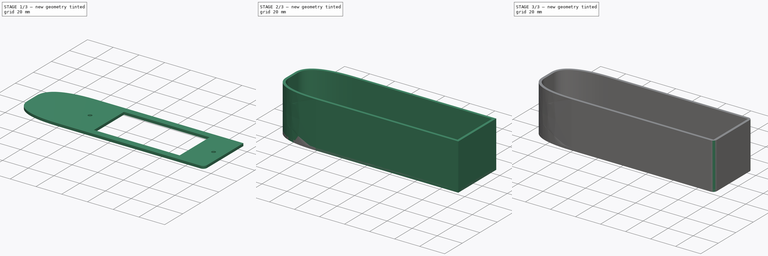
[diagram: build sequence overview — one tinted view per stage of 3, left to right]
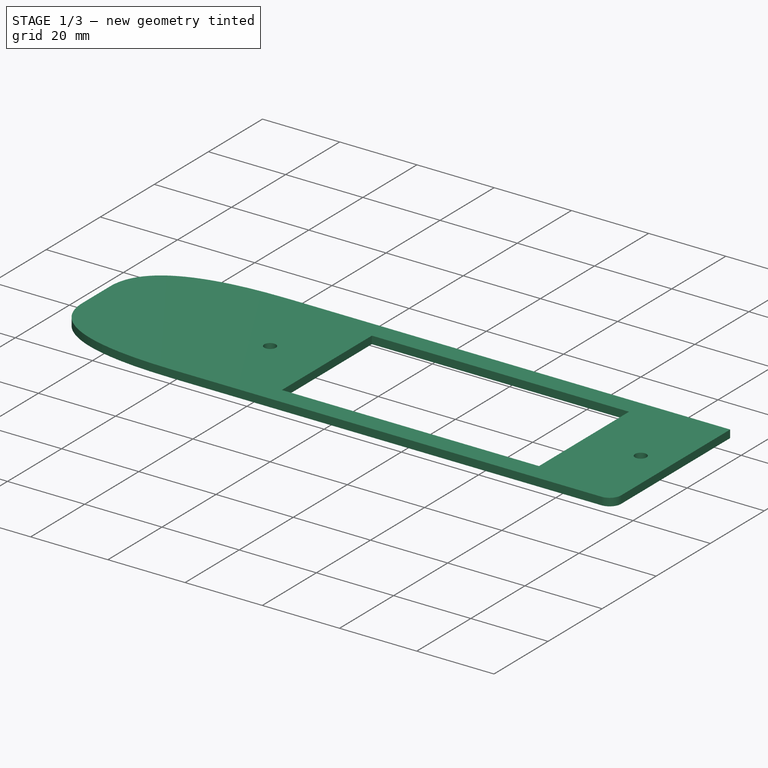
[diagram: stage 1 of 3 — iso view after this stage's code; geometry added in this stage tinted green]
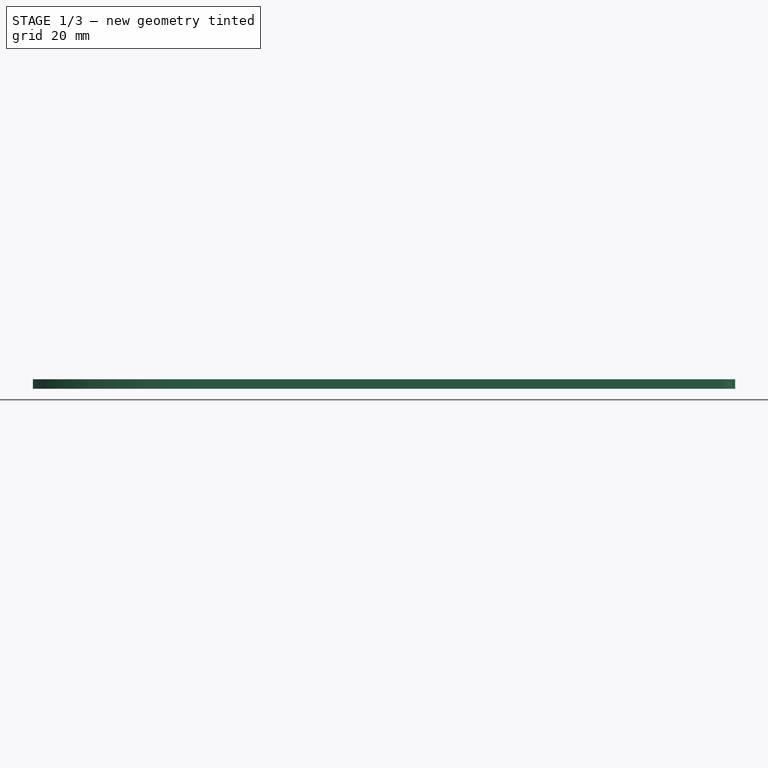
[diagram: stage 1 of 3 — front view after this stage's code; geometry added in this stage tinted green]
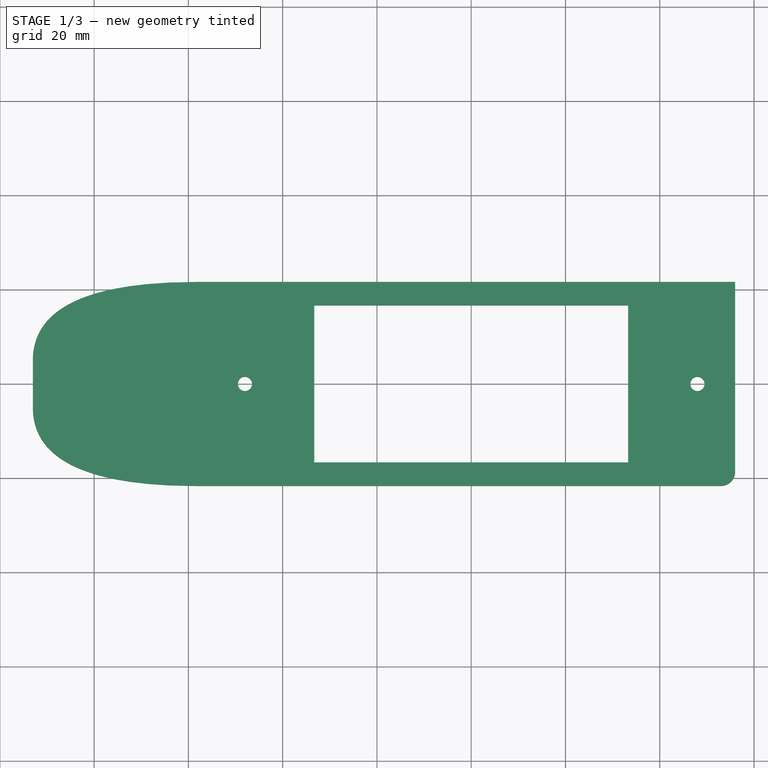
[diagram: stage 1 of 3 — top view after this stage's code; geometry added in this stage tinted green]
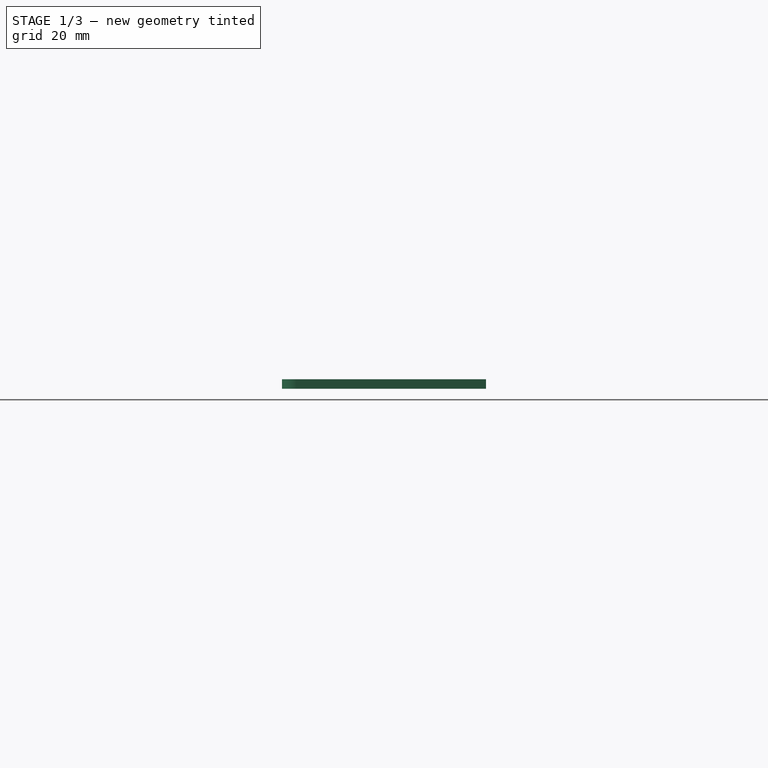
[diagram: stage 1 of 3 — right view after this stage's code; geometry added in this stage tinted green]
FCSTD DOCUMENT  (FreeCAD 0.20R25352 (Git))
Label: garage door switch
License: All rights reserved
LicenseURL: http://en.wikipedia.org/wiki/All_rights_reserved
objects: Sketcher::SketchObject×3, PartDesign::Fillet×3, PartDesign::Pad×2, PartDesign::Body×2, PartDesign::Thickness×1, PartDesign::Hole×1
note: 19 computed .brp shape members not serialized (recipe doc carries the construction recipe); baked Part::Feature solids carry a one-line shape summary decoded from their .brp

FEATURE [PartDesign::Pad] Pad001
  Direction = (0,0,1)
  Length = 2
  Length2 = 100
  Profile = -> Sketch
  Refine = true
  Type = 0
FEATURE [PartDesign::Body] Body
  Group = -> [Sketch001,Pad,Thickness,Sketch002,Hole,Fillet]
  Origin = -> Origin
  Tip = -> Fillet
FEATURE [PartDesign::Fillet] Fillet001
  Base = -> Pad001 [Edge5]
  BaseFeature = -> Pad001
  Radius = 3
  Refine = true
  SupportTransform = false
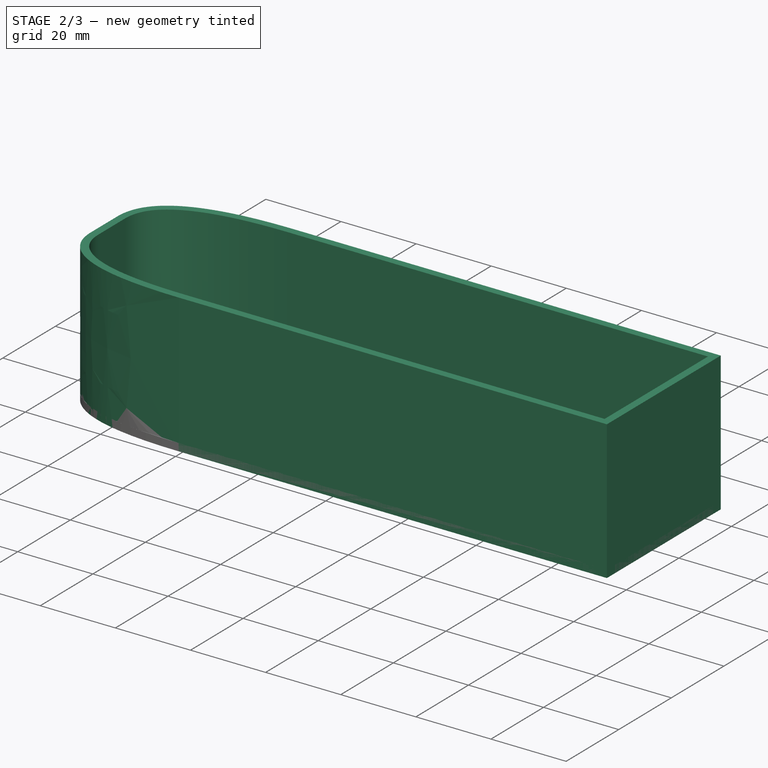
[diagram: stage 2 of 3 — iso view after this stage's code; geometry added in this stage tinted green]
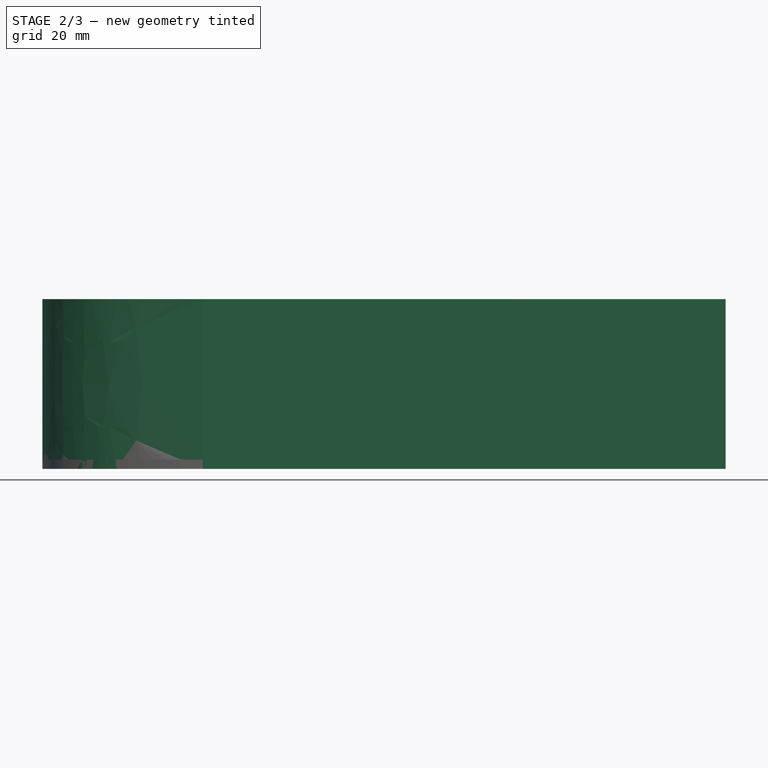
[diagram: stage 2 of 3 — front view after this stage's code; geometry added in this stage tinted green]
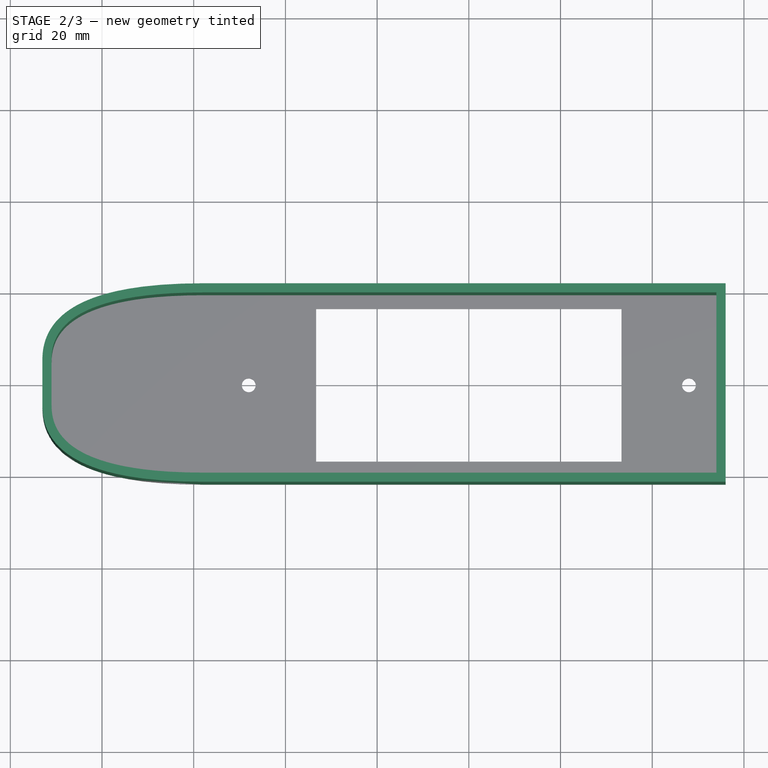
[diagram: stage 2 of 3 — top view after this stage's code; geometry added in this stage tinted green]
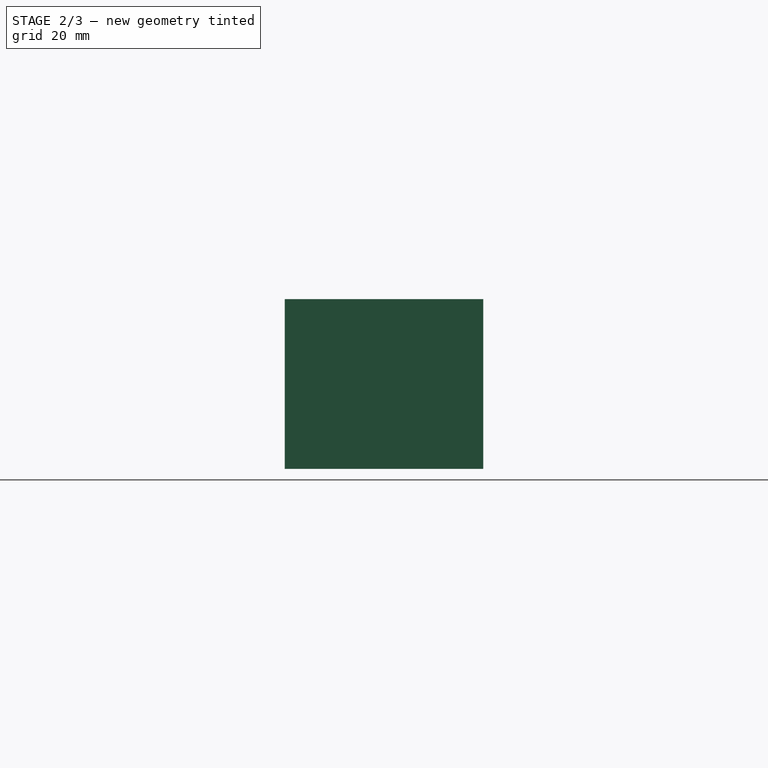
[diagram: stage 2 of 3 — right view after this stage's code; geometry added in this stage tinted green]
FEATURE [Sketcher::SketchObject] Sketch
  FullyConstrained = true
  MapMode = 5
  Support = -> [XY_Plane001]
  sketch-geometry (23):
    g0: LineSegment StartX=-33.3 StartY=16.65 StartZ=0 EndX=33.3 EndY=16.65 EndZ=0
    g1: LineSegment StartX=33.3 StartY=16.65 StartZ=0 EndX=33.3 EndY=-16.65 EndZ=0
    g2: LineSegment StartX=33.3 StartY=-16.65 StartZ=0 EndX=-33.3 EndY=-16.65 EndZ=0
    g3: LineSegment StartX=-33.3 StartY=-16.65 StartZ=0 EndX=-33.3 EndY=16.65 EndZ=0
    g4: LineSegment StartX=-58 StartY=21.65 StartZ=0 EndX=56 EndY=21.65 EndZ=0
    g5: LineSegment StartX=56 StartY=21.65 StartZ=0 EndX=56 EndY=-21.65 EndZ=0
    g6: LineSegment StartX=56 StartY=-21.65 StartZ=0 EndX=-58 EndY=-21.65 EndZ=0
    g7: LineSegment StartX=-93 StartY=-5 StartZ=0 EndX=-93 EndY=5 EndZ=0
    g8: Circle CenterX=-48 CenterY=0 CenterZ=0 NormalX=0 NormalY=0 NormalZ=1 AngleXU=0 Radius=1.5
    g9: Circle CenterX=48 CenterY=7.982e-12 CenterZ=0 NormalX=0 NormalY=0 NormalZ=1 AngleXU=0 Radius=1.5
    g10: LineSegment StartX=-48 StartY=0 StartZ=0 EndX=-93 EndY=0 EndZ=0
    g11: Circle CenterX=-58 CenterY=21.65 CenterZ=0 NormalX=0 NormalY=0 NormalZ=1 AngleXU=0 Radius=1
    g12: Circle CenterX=-93 CenterY=21.65 CenterZ=0 NormalX=0 NormalY=0 NormalZ=1 AngleXU=0 Radius=1
    g13: Circle CenterX=-93 CenterY=5 CenterZ=0 NormalX=0 NormalY=0 NormalZ=1 AngleXU=0 Radius=1
    g14: BSplineCurve PolesCount=3 KnotsCount=2 Degree=2 IsPeriodic=0
    g15: GeomPoint X=-58 Y=21.65 Z=0
    g16: GeomPoint X=-93 Y=5 Z=0
    g17: Circle CenterX=-58 CenterY=-21.65 CenterZ=0 NormalX=0 NormalY=0 NormalZ=1 AngleXU=0 Radius=1
    g18: Circle CenterX=-93 CenterY=-21.65 CenterZ=0 NormalX=0 NormalY=0 NormalZ=1 AngleXU=0 Radius=1
    g19: Circle CenterX=-93 CenterY=-5 CenterZ=0 NormalX=0 NormalY=0 NormalZ=1 AngleXU=0 Radius=1
    g20: BSplineCurve PolesCount=3 KnotsCount=2 Degree=2 IsPeriodic=0
    g21: GeomPoint X=-58 Y=-21.65 Z=0
    g22: GeomPoint X=-93 Y=-5 Z=0
  constraints (54):
    c: Coincident(g0,g1)
    c: Coincident(g1,g2)
    c: Coincident(g2,g3)
    c: Coincident(g3,g0)
    c: Horizontal(g0)
    c: Horizontal(g2)
    c: Vertical(g1)
    c: Vertical(g3)
    c: Coincident(g4,g5)
    c: Coincident(g5,g6)
    c: Horizontal(g4)
    c: Horizontal(g6)
    c: Vertical(g5)
    c: PointOnObject(g8,g-1)
    c: Symmetric(g0,g1,g-1)
    c: Symmetric(g8,g9,g-1)
    c: DistanceX(g8,g9) = 96
    c: DistanceX(g2,g2) = 66.6
    c: DistanceY(g1,g1) = 33.3
    c: DistanceY(g5,g1) = 5
    c: Diameter(g8) = 3
    c: Equal(g9,g8)
    c: DistanceX(g9,g4) = 8
    c: Symmetric(g4,g6,g-1)
    c: Coincident(g10,g8)
    c: Horizontal(g10)
    c: DistanceX(g10,g10) = 45
    c: PointOnObject(g10,g7)
    c: DistanceY(g7,g7) = 10
    c: DistanceX(g4,g8) = 10
    c: Symmetric(g7,g7,g-1)
    c: Coincident(g14,g4)
    c: Weight(g11) = 1
    c: Equal(g11,g12)
    c: Equal(g11,g13)
    c: Coincident(g14,g7)
    c: InternalAlignment(g11,g14)
    c: InternalAlignment(g12,g14)
    c: InternalAlignment(g13,g14)
    c: InternalAlignment(g15,g14)
    c: InternalAlignment(g16,g14)
    c: Coincident(g20,g6)
    c: Weight(g17) = 1
    c: Equal(g17,g18)
    c: Equal(g17,g19)
    c: Coincident(g20,g7)
    c: InternalAlignment(g17,g20)
    c: InternalAlignment(g18,g20)
    c: InternalAlignment(g19,g20)
    c: InternalAlignment(g21,g20)
    c: InternalAlignment(g22,g20)
    c: Symmetric(g18,g12,g10)
    c: Vertical(g12,g10)
    c: Horizontal(g12,g4)
FEATURE [Sketcher::SketchObject] Sketch001
  FullyConstrained = true
  MapMode = 5
  Support = -> [XY_Plane]
  sketch-geometry (17):
    g0: LineSegment StartX=-58 StartY=21.65 StartZ=0 EndX=56 EndY=21.65 EndZ=0
    g1: LineSegment StartX=56 StartY=21.65 StartZ=0 EndX=56 EndY=-21.65 EndZ=0
    g2: LineSegment StartX=56 StartY=-21.65 StartZ=0 EndX=-58 EndY=-21.65 EndZ=0
    g3: LineSegment StartX=-93 StartY=-5 StartZ=0 EndX=-93 EndY=5 EndZ=0
    g4: LineSegment StartX=-48 StartY=0 StartZ=0 EndX=-93 EndY=0 EndZ=0
    g5: Circle CenterX=-58 CenterY=21.65 CenterZ=0 NormalX=0 NormalY=0 NormalZ=1 AngleXU=0 Radius=1
    g6: Circle CenterX=-93 CenterY=21.65 CenterZ=0 NormalX=0 NormalY=0 NormalZ=1 AngleXU=0 Radius=1
    g7: Circle CenterX=-93 CenterY=5 CenterZ=0 NormalX=0 NormalY=0 NormalZ=1 AngleXU=0 Radius=1
    g8: BSplineCurve PolesCount=3 KnotsCount=2 Degree=2 IsPeriodic=0
    g9: GeomPoint X=-58 Y=21.65 Z=0
    g10: GeomPoint X=-93 Y=5 Z=0
    g11: Circle CenterX=-58 CenterY=-21.65 CenterZ=0 NormalX=0 NormalY=0 NormalZ=1 AngleXU=0 Radius=1
    g12: Circle CenterX=-93 CenterY=-21.65 CenterZ=0 NormalX=0 NormalY=0 NormalZ=1 AngleXU=0 Radius=1
    g13: Circle CenterX=-93 CenterY=-5 CenterZ=0 NormalX=0 NormalY=0 NormalZ=1 AngleXU=0 Radius=1
    g14: BSplineCurve PolesCount=3 KnotsCount=2 Degree=2 IsPeriodic=0
    g15: GeomPoint X=-58 Y=-21.65 Z=0
    g16: GeomPoint X=-93 Y=-5 Z=0
  constraints (39):
    c: Coincident(g0,g1)
    c: Coincident(g1,g2)
    c: Horizontal(g0)
    c: Horizontal(g2)
    c: Vertical(g1)
    c: Symmetric(g0,g2,g-1)
    c: Horizontal(g4)
    c: DistanceX(g4,g4) = 45
    c: PointOnObject(g4,g3)
    c: DistanceY(g3,g3) = 10
    c: Symmetric(g3,g3,g-1)
    c: Coincident(g8,g0)
    c: Weight(g5) = 1
    c: Equal(g5,g6)
    c: Equal(g5,g7)
    c: Coincident(g8,g3)
    c: InternalAlignment(g5,g8)
    c: InternalAlignment(g6,g8)
    c: InternalAlignment(g7,g8)
    c: InternalAlignment(g9,g8)
    c: InternalAlignment(g10,g8)
    c: Coincident(g14,g2)
    c: Weight(g11) = 1
    c: Equal(g11,g12)
    c: Equal(g11,g13)
    c: Coincident(g14,g3)
    c: InternalAlignment(g11,g14)
    c: InternalAlignment(g12,g14)
    c: InternalAlignment(g13,g14)
    c: InternalAlignment(g15,g14)
    c: InternalAlignment(g16,g14)
    c: Symmetric(g12,g6,g4)
    c: Vertical(g6,g4)
    c: Horizontal(g6,g0)
    c: DistanceY(g1,g1) = 43.3
    c: DistanceX(g0,g0) = 114
    c: DistanceX(g4,g0) = 35
    c: DistanceX(g-1,g0) = 56
    c: Horizontal(g12,g2)
FEATURE [PartDesign::Pad] Pad
  Direction = (0,0,1)
  Length = 37
  Length2 = 100
  Profile = -> Sketch001
  Refine = true
  Type = 0
FEATURE [PartDesign::Thickness] Thickness
  Base = -> Pad [Face8,Face7]
  BaseFeature = -> Pad
  Intersection = false
  Join = 0
  Mode = 0
  Refine = true
  Reversed = true
  SupportTransform = false
  Value = 2
FEATURE [PartDesign::Fillet] Fillet002
  Base = -> Fillet001 [Edge3]
  BaseFeature = -> Fillet001
  Radius = 3
  Refine = true
  SupportTransform = false
FEATURE [PartDesign::Body] Body001
  Group = -> [Sketch,Pad001,Fillet001,Fillet002]
  Origin = -> Origin001
  Tip = -> Fillet002
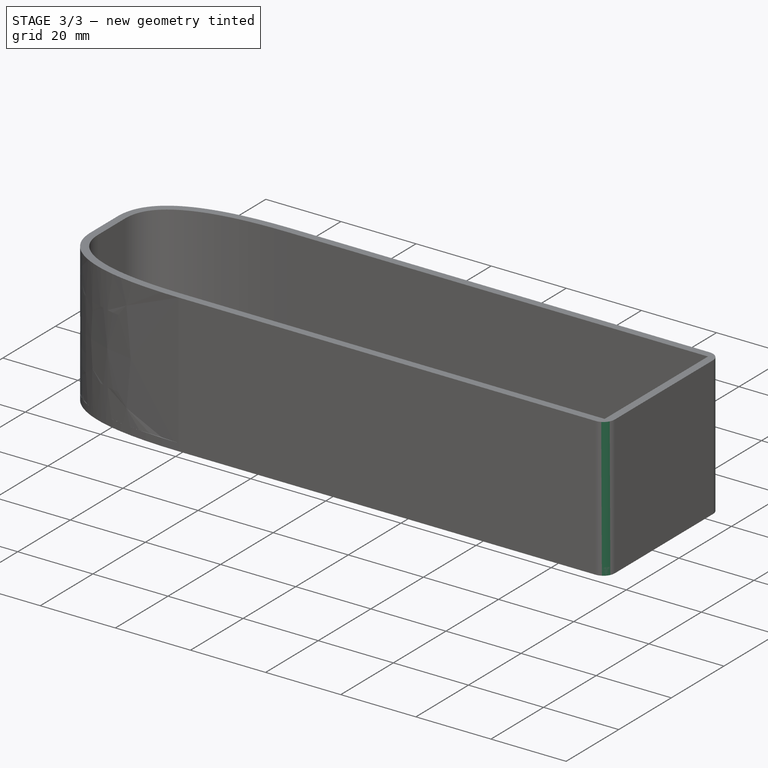
[diagram: stage 3 of 3 — iso view after this stage's code; geometry added in this stage tinted green]
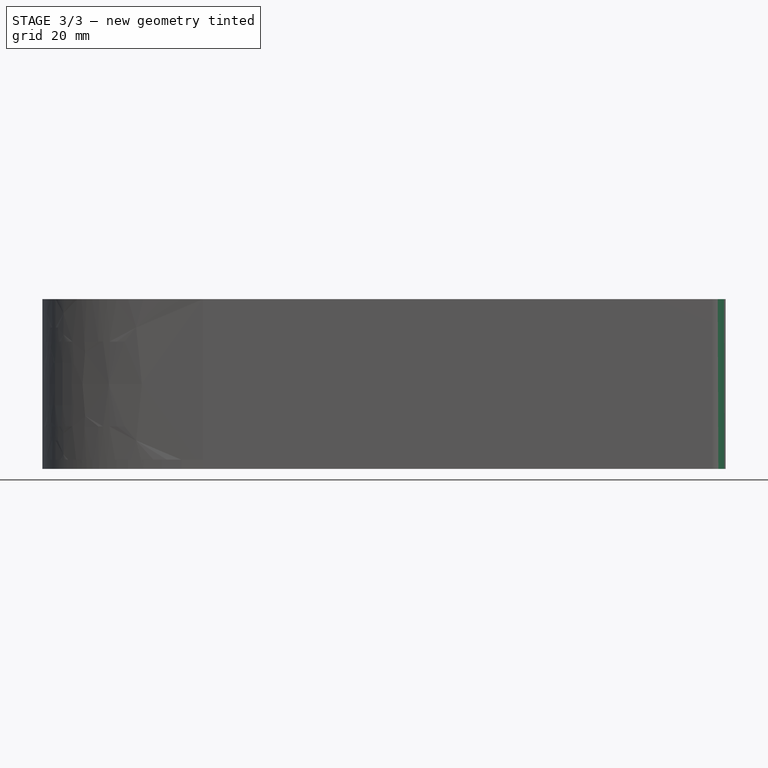
[diagram: stage 3 of 3 — front view after this stage's code; geometry added in this stage tinted green]
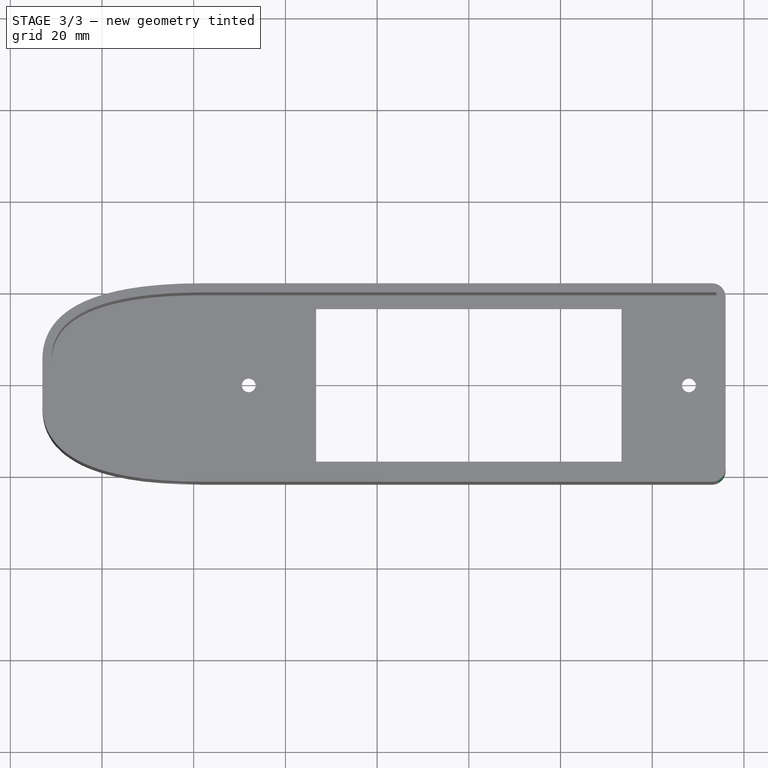
[diagram: stage 3 of 3 — top view after this stage's code; geometry added in this stage tinted green]
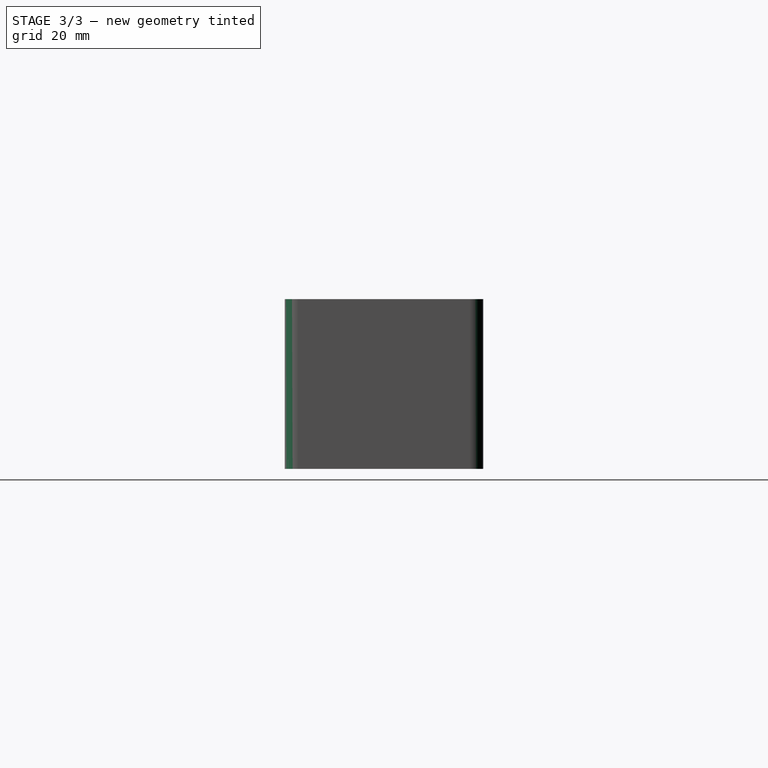
[diagram: stage 3 of 3 — right view after this stage's code; geometry added in this stage tinted green]
FEATURE [Sketcher::SketchObject] Sketch002
  FullyConstrained = true
  MapMode = 5
  Placement = pos=(-93,0,0) rot=(0.57735,-0.57735,-0.57735;2.0944rad)
  Support = -> [Thickness]
  sketch-geometry (1):
    g0: Circle CenterX=0 CenterY=20 CenterZ=0 NormalX=0 NormalY=0 NormalZ=1 AngleXU=0 Radius=4
  constraints (3):
    c: Vertical(g0,g-1)
    c: DistanceY(g-1,g0) = 20
    c: Radius(g0) = 4
FEATURE [PartDesign::Hole] Hole
  BaseFeature = -> Thickness
  CustomThreadClearance = 0
  Depth = 25
  DepthType = 0
  Diameter = 6
  DrillForDepth = false
  DrillPoint = 1
  DrillPointAngle = 118
  HoleCutCountersinkAngle = 90
  HoleCutCustomValues = false
  HoleCutDepth = 0
  HoleCutDiameter = 6.1
  HoleCutType = 0
  ModelThread = false
  Profile = -> Sketch002
  Refine = true
  Tapered = false
  TaperedAngle = 90
  ThreadClass = 0
  ThreadDepth = 25
  ThreadDepthType = 0
  ThreadDirection = 0
  ThreadFit = 0
  ThreadSize = 0
  ThreadType = 0
  Threaded = false
  UseCustomThreadClearance = false
FEATURE [PartDesign::Fillet] Fillet
  Base = -> Hole [Edge2,Edge8]
  BaseFeature = -> Hole
  Radius = 3
  Refine = true
  SupportTransform = false
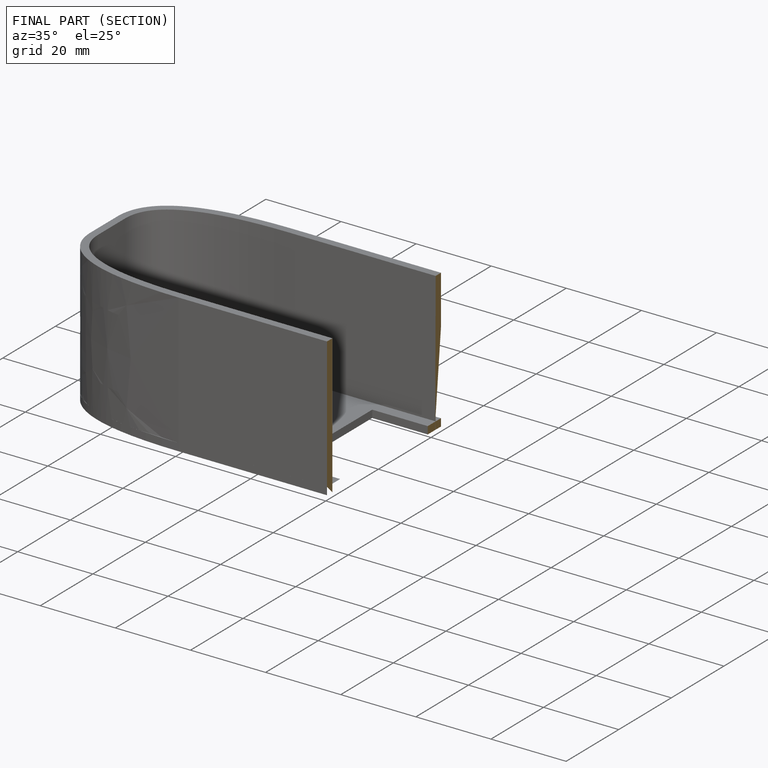
[diagram: finished part — half-section view (interior)]
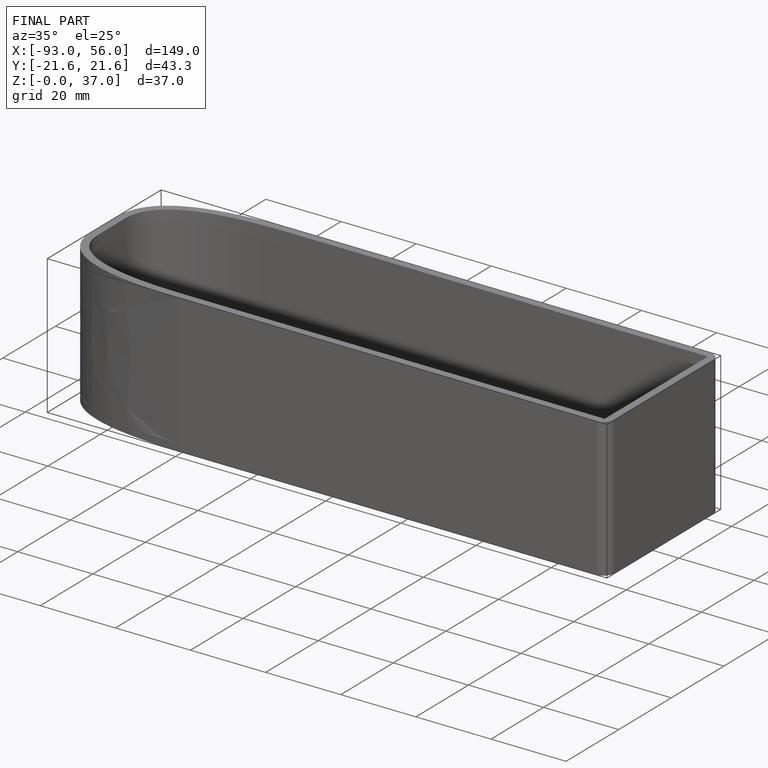
[diagram: finished part — iso view with bounding-box wireframe]
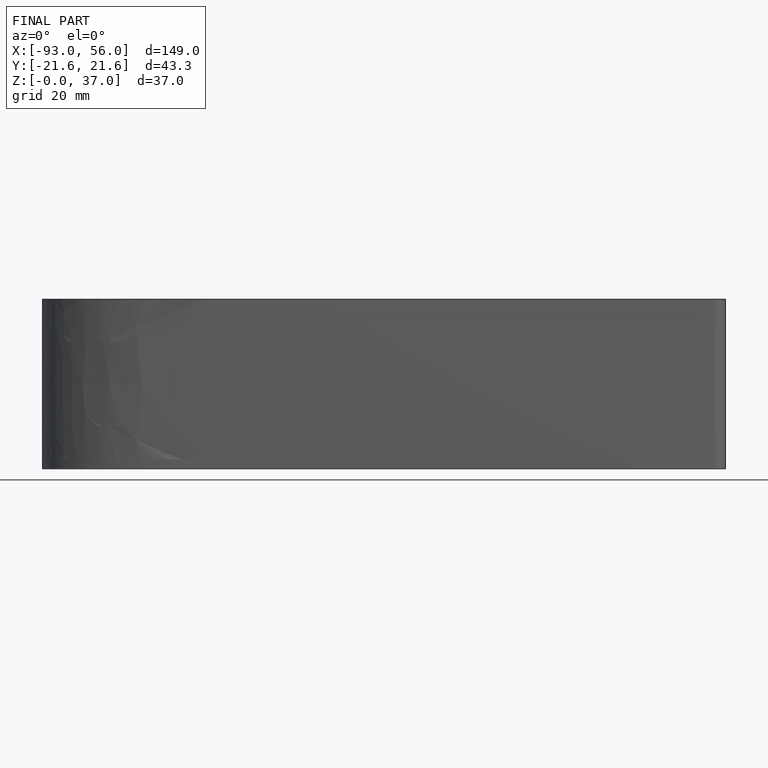
[diagram: finished part — front view with bounding-box wireframe]
